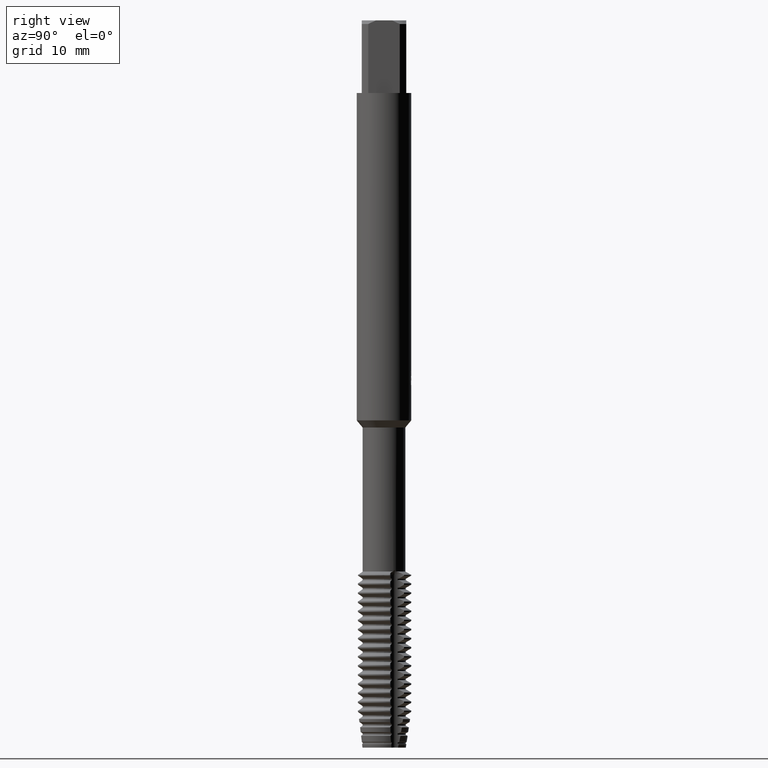
[diagram: clean part render]
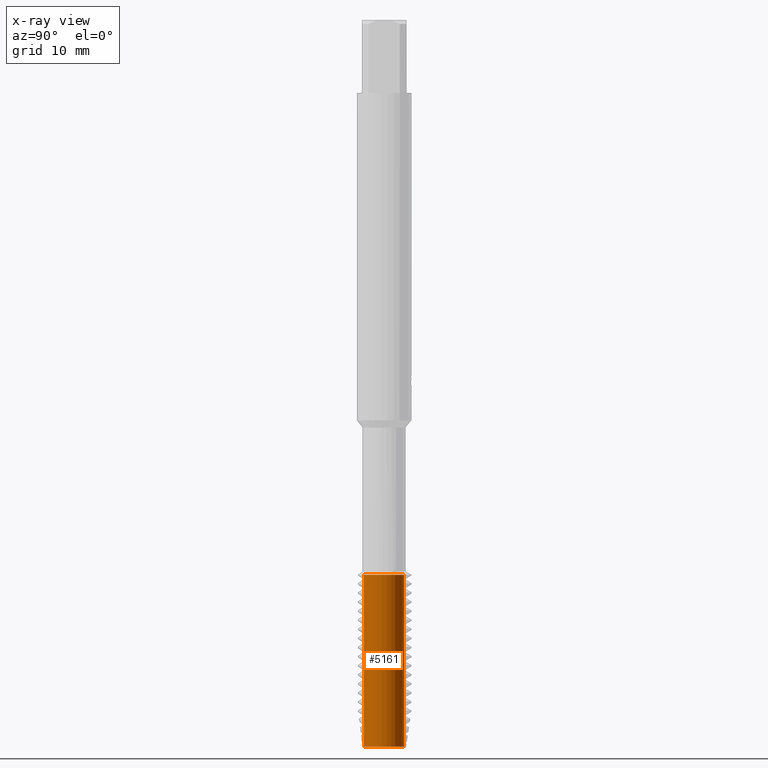
[diagram: x-ray — body ghosted, one internal face saturated and labeled with its STEP entity id]
A machine part, right view, then the same camera in x-ray: the body is ghosted and one INTERNAL B-rep face — a face not visible from any outside direction — is saturated and labeled: STEP entity #5161.
In plain terms, the highlighted cylindrical surface (edge-blend (fillet) strip) has radius 2.2129 mm, axis along (-0, -0, 1).
Its self-contained STEP definition (entity closure, byte-faithful):
#2415=VERTEX_POINT('',#7182);
#3455=EDGE_CURVE('',#6763,#4521,#8318,.T.);
#4521=VERTEX_POINT('',#9478);
#5161=ADVANCED_FACE('',(#10172),#10173,.T.);
#5629=EDGE_CURVE('',#2415,#5823,#10687,.T.);
#5823=VERTEX_POINT('',#10895);
#5935=EDGE_CURVE('',#6763,#2415,#11018,.T.);
#6763=VERTEX_POINT('',#11930);
#6881=EDGE_CURVE('',#5823,#4521,#12056,.T.);
#7182=CARTESIAN_POINT('',(0.0,2.21286071,-79.9166802199437));
#8318=CIRCLE('',#14270,2.21286071);
#9478=CARTESIAN_POINT('',(2.7098832855899E-016,-2.21286071,-61.0));
#10172=FACE_OUTER_BOUND('',#17674,.T.);
#10173=CYLINDRICAL_SURFACE('',#17675,2.21286071);
#10687=CIRCLE('',#18599,2.21286071);
#10895=CARTESIAN_POINT('',(2.7098832855899E-016,-2.21286071,-79.9166802199437));
#11018=LINE('',#19218,#19219);
#11930=CARTESIAN_POINT('',(0.0,2.21286071,-61.0));
#12056=LINE('',#20947,#20948);
#14270=AXIS2_PLACEMENT_3D('',#22981,#22982,#22983);
#17674=EDGE_LOOP('',(#24953,#24954,#24955,#24956));
#17675=AXIS2_PLACEMENT_3D('',#24957,#24958,#24959);
#18599=AXIS2_PLACEMENT_3D('',#25513,#25514,#25515);
#19218=CARTESIAN_POINT('',(-2.7098832855899E-016,2.21286071,-70.4583401099719));
#19219=VECTOR('',#25817,1.0);
#20947=CARTESIAN_POINT('',(2.7098832855899E-016,-2.21286071,-70.4583401099719));
#20948=VECTOR('',#27003,1.0);
#22981=CARTESIAN_POINT('',(0.0,0.0,-61.0));
#22982=DIRECTION('',(0.0,0.0,-1.0));
#22983=DIRECTION('',(0.0,1.0,0.0));
#24953=ORIENTED_EDGE('',*,*,#5935,.F.);
#24954=ORIENTED_EDGE('',*,*,#3455,.T.);
#24955=ORIENTED_EDGE('',*,*,#6881,.F.);
#24956=ORIENTED_EDGE('',*,*,#5629,.F.);
#24957=CARTESIAN_POINT('',(0.0,0.0,-70.4583401099719));
#24958=DIRECTION('',(-0.0,-0.0,1.0));
#24959=DIRECTION('',(0.0,1.0,0.0));
#25513=CARTESIAN_POINT('',(0.0,0.0,-79.9166802199437));
#25514=DIRECTION('',(0.0,0.0,-1.0));
#25515=DIRECTION('',(0.0,1.0,0.0));
#25817=DIRECTION('',(0.0,0.0,-1.0));
#27003=DIRECTION('',(-0.0,-0.0,1.0));